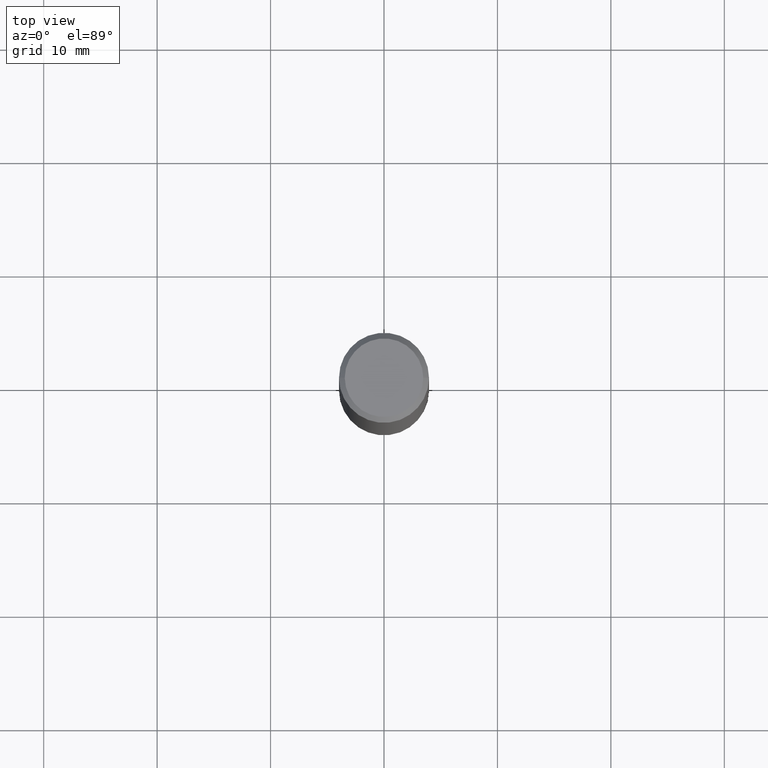
[diagram: clean part render]
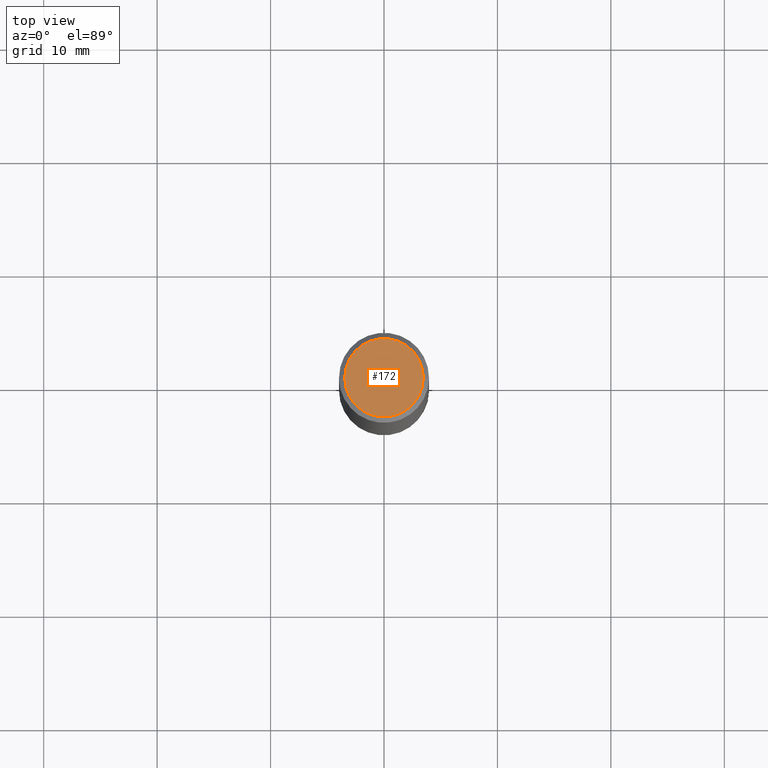
[diagram: same view with one face highlighted and labeled with its STEP entity id]
A machine part, top view. The second image highlights one B-rep face of the part: STEP entity #172.
In plain terms, the highlighted planar face has unit normal (0, -0, -1).
Its self-contained STEP definition (entity closure, byte-faithful):
#45 = DIRECTION ( 'NONE',  ( 1.000000000000000000, -6.982962677686266711E-15, 4.876176775795936353E-29 ) ) ;
#66 = FACE_OUTER_BOUND ( 'NONE', #201, .T. ) ;
#67 = DIRECTION ( 'NONE',  ( 2.438088387897960049E-29, -3.491481338843145188E-15, -1.000000000000000000 ) ) ;
#71 = DIRECTION ( 'NONE',  ( 1.000000000000000000, -6.982962677686266711E-15, 4.876176775795936353E-29 ) ) ;
#75 = CARTESIAN_POINT ( 'NONE',  ( -0.1362499999999997324, 9.863434782231834374E-16, -6.775751096333127272E-30 ) ) ;
#92 = CIRCLE ( 'NONE', #139, 0.1362499999999997324 ) ;
#99 = AXIS2_PLACEMENT_3D ( 'NONE', #123, #67, #182 ) ;
#104 = DIRECTION ( 'NONE',  ( -2.445468806185136597E-29, 3.491481338843145583E-15, 1.000000000000000000 ) ) ;
#123 = CARTESIAN_POINT ( 'NONE',  ( 9.514286648347519855E-16, 0.1362499999999997324, -4.757143324173776691E-16 ) ) ;
#139 = AXIS2_PLACEMENT_3D ( 'NONE', #360, #104, #71 ) ;
#140 = VERTEX_POINT ( 'NONE', #323 ) ;
#152 = CIRCLE ( 'NONE', #295, 0.1362499999999997324 ) ;
#172 = ADVANCED_FACE ( 'NONE', ( #66 ), #238, .F. ) ;
#182 = DIRECTION ( 'NONE',  ( -1.000000000000000000, 6.982962677686265922E-15, -4.876176775795935793E-29 ) ) ;
#201 = EDGE_LOOP ( 'NONE', ( #363, #335 ) ) ;
#202 = EDGE_CURVE ( 'NONE', #140, #280, #92, .T. ) ;
#238 = PLANE ( 'NONE',  #99 ) ;
#246 = CARTESIAN_POINT ( 'NONE',  ( 0.000000000000000000, 0.000000000000000000, 0.000000000000000000 ) ) ;
#280 = VERTEX_POINT ( 'NONE', #75 ) ;
#291 = EDGE_CURVE ( 'NONE', #280, #140, #152, .T. ) ;
#295 = AXIS2_PLACEMENT_3D ( 'NONE', #246, #327, #45 ) ;
#323 = CARTESIAN_POINT ( 'NONE',  ( 0.1362499999999997324, -1.038262645562516547E-15, 6.957025900226683865E-30 ) ) ;
#327 = DIRECTION ( 'NONE',  ( -2.445468806185136597E-29, 3.491481338843145583E-15, 1.000000000000000000 ) ) ;
#335 = ORIENTED_EDGE ( 'NONE', *, *, #202, .T. ) ;
#360 = CARTESIAN_POINT ( 'NONE',  ( 0.000000000000000000, 0.000000000000000000, 0.000000000000000000 ) ) ;
#363 = ORIENTED_EDGE ( 'NONE', *, *, #291, .T. ) ;